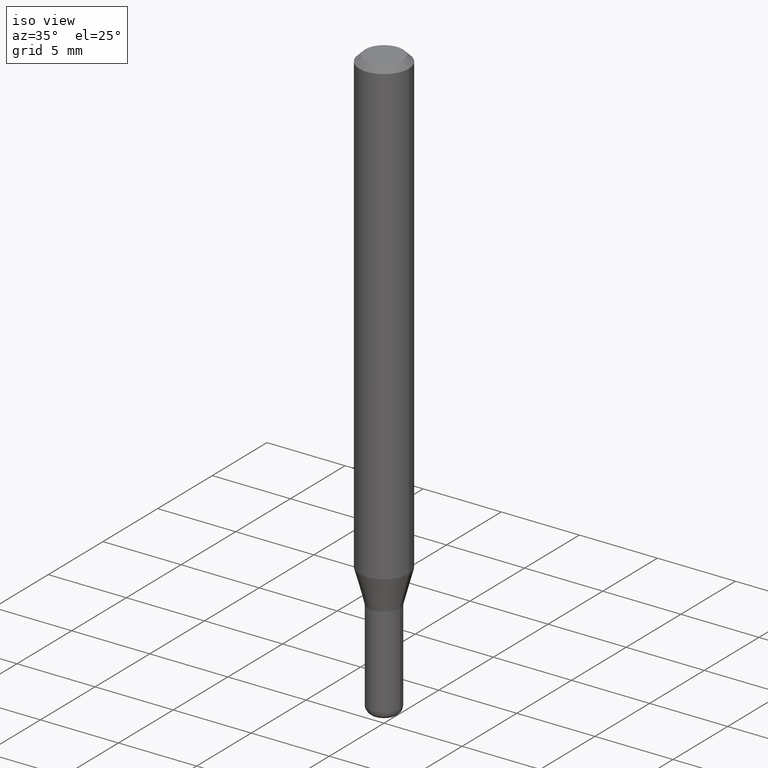
[diagram: clean part render]
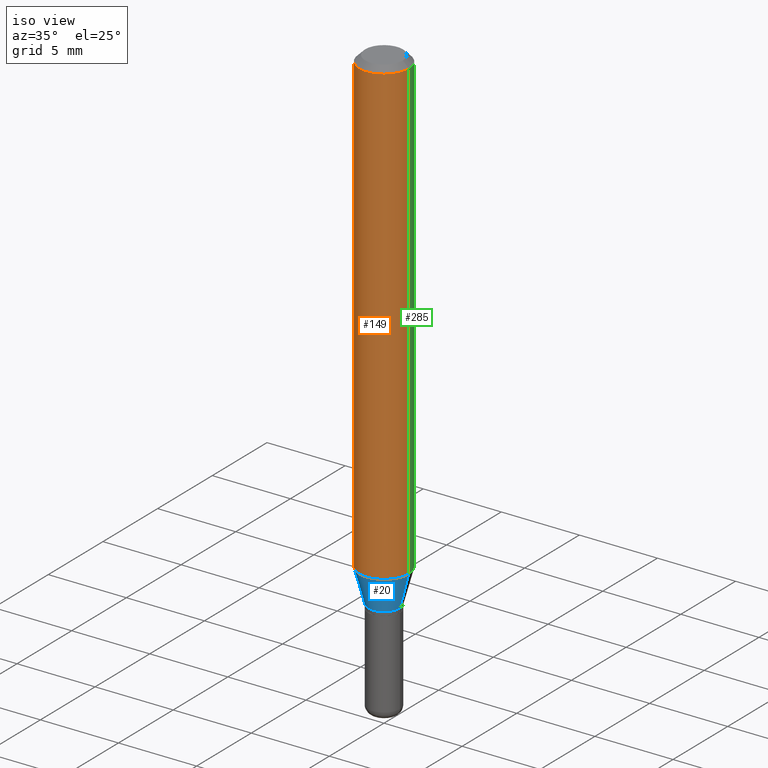
[diagram: same view with three faces highlighted in distinct colors, each labeled with its STEP entity id]
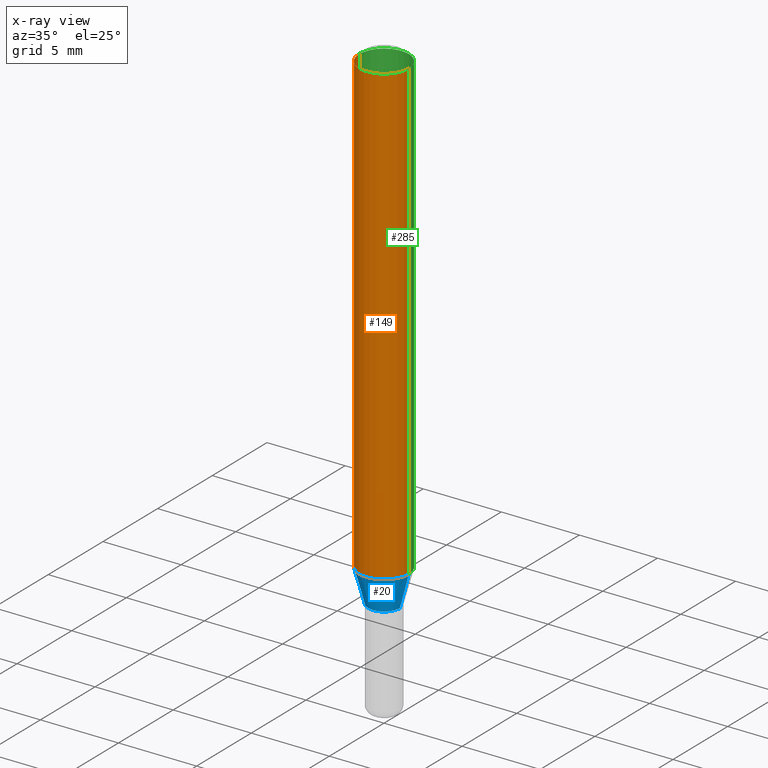
[diagram: x-ray of the same camera — body ghosted, the three highlighted faces saturated]
A machine part, iso view with three faces highlighted in distinct colors.
The next image is the same camera in x-ray (body ghosted, the three faces saturated) — at least one of them is partly hidden behind the body in this view.
Their STEP definitions:

[orange] entity #149 — the highlighted cylindrical surface (edge-blend (fillet) strip) has radius 1.5875 mm, axis along (-0, 0, 1).
#3 = FACE_OUTER_BOUND ( 'NONE', #246, .T. ) ;
#47 = DIRECTION ( 'NONE',  ( -2.445468806185136597E-29, 3.491481338843145583E-15, 1.000000000000000000 ) ) ;
#48 = DIRECTION ( 'NONE',  ( -2.445468806185136597E-29, 3.491481338843145583E-15, 1.000000000000000000 ) ) ;
#71 = VERTEX_POINT ( 'NONE', #218 ) ;
#72 = DIRECTION ( 'NONE',  ( 1.000000000000000000, -6.982962677686262766E-15, 0.000000000000000000 ) ) ;
#75 = ORIENTED_EDGE ( 'NONE', *, *, #184, .F. ) ;
#91 = CARTESIAN_POINT ( 'NONE',  ( 0.06250000000000000000, -4.364351673553916694E-16, 3.047610484872459871E-30 ) ) ;
#118 = AXIS2_PLACEMENT_3D ( 'NONE', #268, #152, #72 ) ;
#121 = DIRECTION ( 'NONE',  ( -2.445468806185136877E-29, 3.491481338843145188E-15, 1.000000000000000000 ) ) ;
#122 = VERTEX_POINT ( 'NONE', #127 ) ;
#127 = CARTESIAN_POINT ( 'NONE',  ( 0.06250000000000000000, -4.507603161528897181E-15, -1.166028856829700366 ) ) ;
#130 = DIRECTION ( 'NONE',  ( 1.000000000000000000, -6.982962677686266711E-15, 4.876176775795935793E-29 ) ) ;
#138 = EDGE_CURVE ( 'NONE', #71, #167, #213, .T. ) ;
#149 = ADVANCED_FACE ( 'NONE', ( #3 ), #488, .T. ) ;
#151 = VERTEX_POINT ( 'NONE', #401 ) ;
#152 = DIRECTION ( 'NONE',  ( -2.445468806185136597E-29, 3.491481338843145583E-15, 1.000000000000000000 ) ) ;
#159 = CARTESIAN_POINT ( 'NONE',  ( -0.06250000000000000000, 4.440892098500626162E-16, -3.074334431409316114E-30 ) ) ;
#167 = VERTEX_POINT ( 'NONE', #331 ) ;
#184 = EDGE_CURVE ( 'NONE', #151, #71, #239, .T. ) ;
#213 = CIRCLE ( 'NONE', #334, 0.06250000000000000000 ) ;
#218 = CARTESIAN_POINT ( 'NONE',  ( -0.06250000000000000000, -1.617680897278012693E-15, -0.01499999999999970281 ) ) ;
#236 = CARTESIAN_POINT ( 'NONE',  ( 0.000000000000000000, 0.000000000000000000, 0.000000000000000000 ) ) ;
#239 = LINE ( 'NONE', #159, #431 ) ;
#246 = EDGE_LOOP ( 'NONE', ( #75, #310, #515, #518 ) ) ;
#268 = CARTESIAN_POINT ( 'NONE',  ( 2.851487196488747125E-29, -4.071167994173504722E-15, -1.166028856829700366 ) ) ;
#274 = AXIS2_PLACEMENT_3D ( 'NONE', #236, #47, #130 ) ;
#288 = DIRECTION ( 'NONE',  ( 1.000000000000000000, -6.982962677686266711E-15, 0.000000000000000000 ) ) ;
#310 = ORIENTED_EDGE ( 'NONE', *, *, #424, .T. ) ;
#313 = EDGE_CURVE ( 'NONE', #122, #167, #372, .T. ) ;
#331 = CARTESIAN_POINT ( 'NONE',  ( 0.06250000000000000000, -4.888073874380378612E-16, -0.01499999999999970281 ) ) ;
#334 = AXIS2_PLACEMENT_3D ( 'NONE', #362, #48, #288 ) ;
#362 = CARTESIAN_POINT ( 'NONE',  ( 3.668203209277632395E-31, -5.237222008264614861E-17, -0.01499999999999970281 ) ) ;
#372 = LINE ( 'NONE', #91, #465 ) ;
#401 = CARTESIAN_POINT ( 'NONE',  ( -0.06250000000000000000, -3.627078784323442106E-15, -1.166028856829700366 ) ) ;
#409 = CIRCLE ( 'NONE', #118, 0.06250000000000000000 ) ;
#424 = EDGE_CURVE ( 'NONE', #151, #122, #409, .T. ) ;
#431 = VECTOR ( 'NONE', #121, 39.37007874015748143 ) ;
#455 = DIRECTION ( 'NONE',  ( -2.445468806185136877E-29, 3.491481338843145188E-15, 1.000000000000000000 ) ) ;
#465 = VECTOR ( 'NONE', #455, 39.37007874015748143 ) ;
#488 = CYLINDRICAL_SURFACE ( 'NONE', #274, 0.06250000000000000000 ) ;
#515 = ORIENTED_EDGE ( 'NONE', *, *, #313, .T. ) ;
#518 = ORIENTED_EDGE ( 'NONE', *, *, #138, .F. ) ;

[blue] entity #20 — the highlighted conical surface has half-angle 15 deg.
#13 = DIRECTION ( 'NONE',  ( 0.2588190451025207950, 1.565188264969625912E-15, 0.9659258262890682012 ) ) ;
#14 = LINE ( 'NONE', #374, #339 ) ;
#20 = ADVANCED_FACE ( 'NONE', ( #113 ), #398, .T. ) ;
#28 = LINE ( 'NONE', #259, #222 ) ;
#34 = VERTEX_POINT ( 'NONE', #504 ) ;
#52 = AXIS2_PLACEMENT_3D ( 'NONE', #139, #503, #102 ) ;
#72 = DIRECTION ( 'NONE',  ( 1.000000000000000000, -6.982962677686262766E-15, 0.000000000000000000 ) ) ;
#102 = DIRECTION ( 'NONE',  ( 1.000000000000000000, -6.982962677686271444E-15, 0.000000000000000000 ) ) ;
#113 = FACE_OUTER_BOUND ( 'NONE', #394, .T. ) ;
#118 = AXIS2_PLACEMENT_3D ( 'NONE', #268, #152, #72 ) ;
#122 = VERTEX_POINT ( 'NONE', #127 ) ;
#127 = CARTESIAN_POINT ( 'NONE',  ( 0.06250000000000000000, -4.507603161528897181E-15, -1.166028856829700366 ) ) ;
#139 = CARTESIAN_POINT ( 'NONE',  ( 3.056836007731421306E-29, -4.364351673553932471E-15, -1.250000000000000000 ) ) ;
#151 = VERTEX_POINT ( 'NONE', #401 ) ;
#152 = DIRECTION ( 'NONE',  ( -2.445468806185136597E-29, 3.491481338843145583E-15, 1.000000000000000000 ) ) ;
#165 = ORIENTED_EDGE ( 'NONE', *, *, #484, .F. ) ;
#182 = DIRECTION ( 'NONE',  ( 1.000000000000000000, -6.982962677686271444E-15, 0.000000000000000000 ) ) ;
#222 = VECTOR ( 'NONE', #420, 39.37007874015748854 ) ;
#259 = CARTESIAN_POINT ( 'NONE',  ( -0.04000000000000000083, -4.080134579249892145E-15, -1.250000000000000000 ) ) ;
#268 = CARTESIAN_POINT ( 'NONE',  ( 2.851487196488747125E-29, -4.071167994173504722E-15, -1.166028856829700366 ) ) ;
#272 = CARTESIAN_POINT ( 'NONE',  ( 3.056836007731421306E-29, -4.364351673553932471E-15, -1.250000000000000000 ) ) ;
#318 = DIRECTION ( 'NONE',  ( -2.445468806185136597E-29, 3.491481338843145583E-15, 1.000000000000000000 ) ) ;
#339 = VECTOR ( 'NONE', #13, 39.37007874015748854 ) ;
#367 = EDGE_CURVE ( 'NONE', #390, #122, #14, .T. ) ;
#374 = CARTESIAN_POINT ( 'NONE',  ( 0.04000000000000000083, -4.643670180661383298E-15, -1.250000000000000000 ) ) ;
#390 = VERTEX_POINT ( 'NONE', #417 ) ;
#394 = EDGE_LOOP ( 'NONE', ( #165, #418, #432, #426 ) ) ;
#398 = CONICAL_SURFACE ( 'NONE', #430, 0.04000000000000000083, 0.2617993877991495189 ) ;
#401 = CARTESIAN_POINT ( 'NONE',  ( -0.06250000000000000000, -3.627078784323442106E-15, -1.166028856829700366 ) ) ;
#409 = CIRCLE ( 'NONE', #118, 0.06250000000000000000 ) ;
#417 = CARTESIAN_POINT ( 'NONE',  ( 0.04000000000000000083, -4.643670180661383298E-15, -1.250000000000000000 ) ) ;
#418 = ORIENTED_EDGE ( 'NONE', *, *, #472, .T. ) ;
#420 = DIRECTION ( 'NONE',  ( -0.2588190451025207950, 5.211531920934546309E-15, 0.9659258262890682012 ) ) ;
#424 = EDGE_CURVE ( 'NONE', #151, #122, #409, .T. ) ;
#426 = ORIENTED_EDGE ( 'NONE', *, *, #424, .F. ) ;
#430 = AXIS2_PLACEMENT_3D ( 'NONE', #272, #318, #182 ) ;
#432 = ORIENTED_EDGE ( 'NONE', *, *, #367, .T. ) ;
#472 = EDGE_CURVE ( 'NONE', #34, #390, #496, .T. ) ;
#484 = EDGE_CURVE ( 'NONE', #34, #151, #28, .T. ) ;
#496 = CIRCLE ( 'NONE', #52, 0.04000000000000000083 ) ;
#503 = DIRECTION ( 'NONE',  ( -2.445468806185136597E-29, 3.491481338843145583E-15, 1.000000000000000000 ) ) ;
#504 = CARTESIAN_POINT ( 'NONE',  ( -0.04000000000000000083, -3.853606681786667125E-15, -1.250000000000000000 ) ) ;

[green] entity #285 — the highlighted cylindrical surface (edge-blend (fillet) strip) has radius 1.5875 mm, axis along (-0, 0, 1).
#12 = CIRCLE ( 'NONE', #486, 0.06250000000000000000 ) ;
#22 = EDGE_LOOP ( 'NONE', ( #227, #181, #314, #463 ) ) ;
#25 = DIRECTION ( 'NONE',  ( -2.445468806185136597E-29, 3.491481338843145583E-15, 1.000000000000000000 ) ) ;
#42 = EDGE_CURVE ( 'NONE', #167, #71, #56, .T. ) ;
#56 = CIRCLE ( 'NONE', #350, 0.06250000000000000000 ) ;
#71 = VERTEX_POINT ( 'NONE', #218 ) ;
#91 = CARTESIAN_POINT ( 'NONE',  ( 0.06250000000000000000, -4.364351673553916694E-16, 3.047610484872459871E-30 ) ) ;
#104 = DIRECTION ( 'NONE',  ( 1.000000000000000000, -6.982962677686266711E-15, 0.000000000000000000 ) ) ;
#121 = DIRECTION ( 'NONE',  ( -2.445468806185136877E-29, 3.491481338843145188E-15, 1.000000000000000000 ) ) ;
#122 = VERTEX_POINT ( 'NONE', #127 ) ;
#127 = CARTESIAN_POINT ( 'NONE',  ( 0.06250000000000000000, -4.507603161528897181E-15, -1.166028856829700366 ) ) ;
#145 = CARTESIAN_POINT ( 'NONE',  ( 3.668203209277632395E-31, -5.237222008264614861E-17, -0.01499999999999970281 ) ) ;
#151 = VERTEX_POINT ( 'NONE', #401 ) ;
#159 = CARTESIAN_POINT ( 'NONE',  ( -0.06250000000000000000, 4.440892098500626162E-16, -3.074334431409316114E-30 ) ) ;
#167 = VERTEX_POINT ( 'NONE', #331 ) ;
#173 = DIRECTION ( 'NONE',  ( -2.445468806185136597E-29, 3.491481338843145583E-15, 1.000000000000000000 ) ) ;
#181 = ORIENTED_EDGE ( 'NONE', *, *, #184, .T. ) ;
#184 = EDGE_CURVE ( 'NONE', #151, #71, #239, .T. ) ;
#211 = DIRECTION ( 'NONE',  ( 1.000000000000000000, -6.982962677686266711E-15, 4.876176775795935793E-29 ) ) ;
#215 = CYLINDRICAL_SURFACE ( 'NONE', #493, 0.06250000000000000000 ) ;
#218 = CARTESIAN_POINT ( 'NONE',  ( -0.06250000000000000000, -1.617680897278012693E-15, -0.01499999999999970281 ) ) ;
#227 = ORIENTED_EDGE ( 'NONE', *, *, #237, .T. ) ;
#237 = EDGE_CURVE ( 'NONE', #122, #151, #12, .T. ) ;
#239 = LINE ( 'NONE', #159, #431 ) ;
#284 = DIRECTION ( 'NONE',  ( -2.445468806185136597E-29, 3.491481338843145583E-15, 1.000000000000000000 ) ) ;
#285 = ADVANCED_FACE ( 'NONE', ( #516 ), #215, .T. ) ;
#313 = EDGE_CURVE ( 'NONE', #122, #167, #372, .T. ) ;
#314 = ORIENTED_EDGE ( 'NONE', *, *, #42, .F. ) ;
#331 = CARTESIAN_POINT ( 'NONE',  ( 0.06250000000000000000, -4.888073874380378612E-16, -0.01499999999999970281 ) ) ;
#350 = AXIS2_PLACEMENT_3D ( 'NONE', #145, #25, #104 ) ;
#372 = LINE ( 'NONE', #91, #465 ) ;
#401 = CARTESIAN_POINT ( 'NONE',  ( -0.06250000000000000000, -3.627078784323442106E-15, -1.166028856829700366 ) ) ;
#411 = CARTESIAN_POINT ( 'NONE',  ( 0.000000000000000000, 0.000000000000000000, 0.000000000000000000 ) ) ;
#431 = VECTOR ( 'NONE', #121, 39.37007874015748143 ) ;
#455 = DIRECTION ( 'NONE',  ( -2.445468806185136877E-29, 3.491481338843145188E-15, 1.000000000000000000 ) ) ;
#463 = ORIENTED_EDGE ( 'NONE', *, *, #313, .F. ) ;
#465 = VECTOR ( 'NONE', #455, 39.37007874015748143 ) ;
#481 = CARTESIAN_POINT ( 'NONE',  ( 2.851487196488747125E-29, -4.071167994173504722E-15, -1.166028856829700366 ) ) ;
#483 = DIRECTION ( 'NONE',  ( 1.000000000000000000, -6.982962677686262766E-15, 0.000000000000000000 ) ) ;
#486 = AXIS2_PLACEMENT_3D ( 'NONE', #481, #284, #483 ) ;
#493 = AXIS2_PLACEMENT_3D ( 'NONE', #411, #173, #211 ) ;
#516 = FACE_OUTER_BOUND ( 'NONE', #22, .T. ) ;